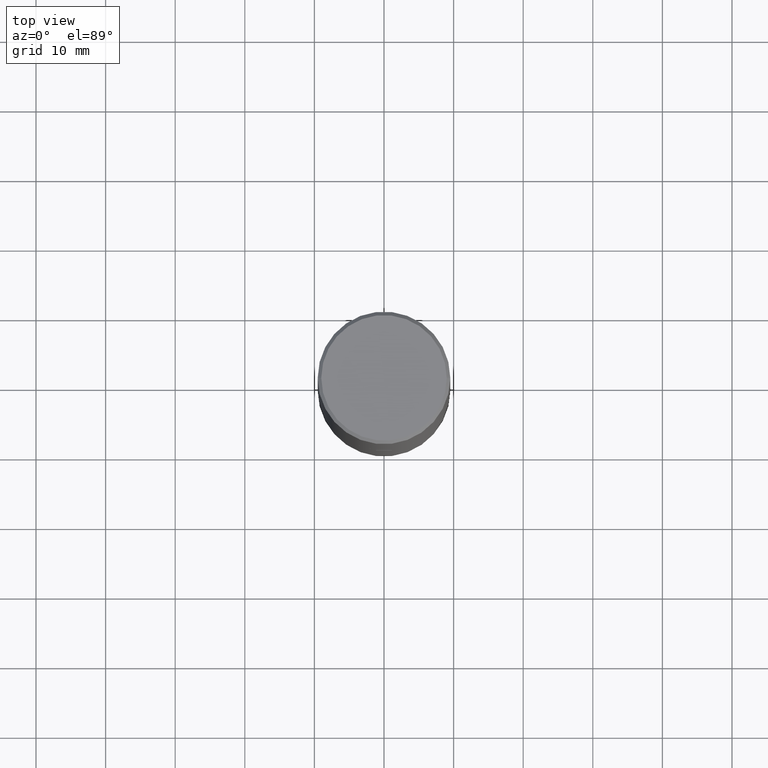
[diagram: clean part render]
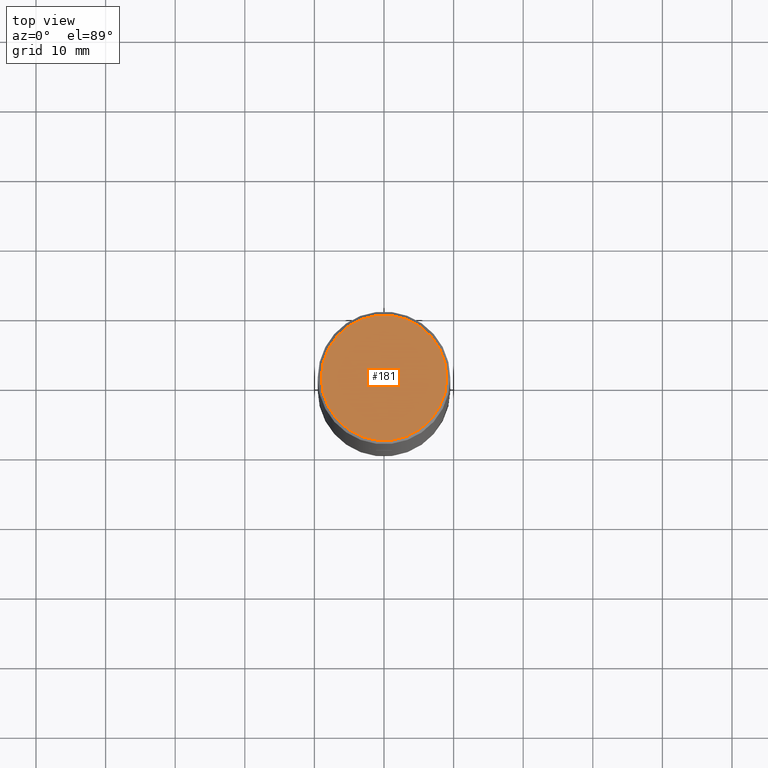
[diagram: same view with one face highlighted and labeled with its STEP entity id]
A machine part, top view. The second image highlights one B-rep face of the part: STEP entity #181.
In plain terms, the highlighted planar face has unit normal (0, -0, -1).
Its self-contained STEP definition (entity closure, byte-faithful):
#14 = PLANE ( 'NONE',  #223 ) ;
#17 = FACE_OUTER_BOUND ( 'NONE', #37, .T. ) ;
#25 = EDGE_CURVE ( 'NONE', #131, #62, #186, .T. ) ;
#27 = CIRCLE ( 'NONE', #127, 0.3549999999999998157 ) ;
#37 = EDGE_LOOP ( 'NONE', ( #117, #101 ) ) ;
#62 = VERTEX_POINT ( 'NONE', #316 ) ;
#101 = ORIENTED_EDGE ( 'NONE', *, *, #135, .T. ) ;
#117 = ORIENTED_EDGE ( 'NONE', *, *, #25, .T. ) ;
#127 = AXIS2_PLACEMENT_3D ( 'NONE', #207, #290, #211 ) ;
#131 = VERTEX_POINT ( 'NONE', #184 ) ;
#135 = EDGE_CURVE ( 'NONE', #62, #131, #27, .T. ) ;
#157 = CARTESIAN_POINT ( 'NONE',  ( -1.043851414335219820E-46, 1.490343170380447200E-32, 4.268512490100411279E-18 ) ) ;
#181 = ADVANCED_FACE ( 'NONE', ( #17 ), #14, .F. ) ;
#184 = CARTESIAN_POINT ( 'NONE',  ( -0.3549999999999998157, 2.513866563967054675E-15, 4.268512490082953109E-18 ) ) ;
#186 = CIRCLE ( 'NONE', #308, 0.3549999999999998157 ) ;
#190 = DIRECTION ( 'NONE',  ( 1.000000000000000000, -6.982962677686266711E-15, 4.876231632511990425E-29 ) ) ;
#207 = CARTESIAN_POINT ( 'NONE',  ( -1.043851414335219820E-46, 1.490343170380447200E-32, 4.268512490100411279E-18 ) ) ;
#211 = DIRECTION ( 'NONE',  ( 1.000000000000000000, -6.982962677686266711E-15, 4.876231632511990425E-29 ) ) ;
#223 = AXIS2_PLACEMENT_3D ( 'NONE', #233, #327, #235 ) ;
#233 = CARTESIAN_POINT ( 'NONE',  ( 2.478951750578623420E-15, 0.3549999999999998157, -1.237341619044265835E-15 ) ) ;
#235 = DIRECTION ( 'NONE',  ( -1.000000000000000000, 6.982962677686265922E-15, -4.876176775795935793E-29 ) ) ;
#277 = DIRECTION ( 'NONE',  ( -2.445468806185136597E-29, 3.491481338843145583E-15, 1.000000000000000000 ) ) ;
#290 = DIRECTION ( 'NONE',  ( -2.445468806185136597E-29, 3.491481338843145583E-15, 1.000000000000000000 ) ) ;
#308 = AXIS2_PLACEMENT_3D ( 'NONE', #157, #277, #190 ) ;
#316 = CARTESIAN_POINT ( 'NONE',  ( 0.3549999999999998157, -2.538996582575039470E-15, 4.268512490117958041E-18 ) ) ;
#327 = DIRECTION ( 'NONE',  ( 2.438088387897960049E-29, -3.491481338843145188E-15, -1.000000000000000000 ) ) ;